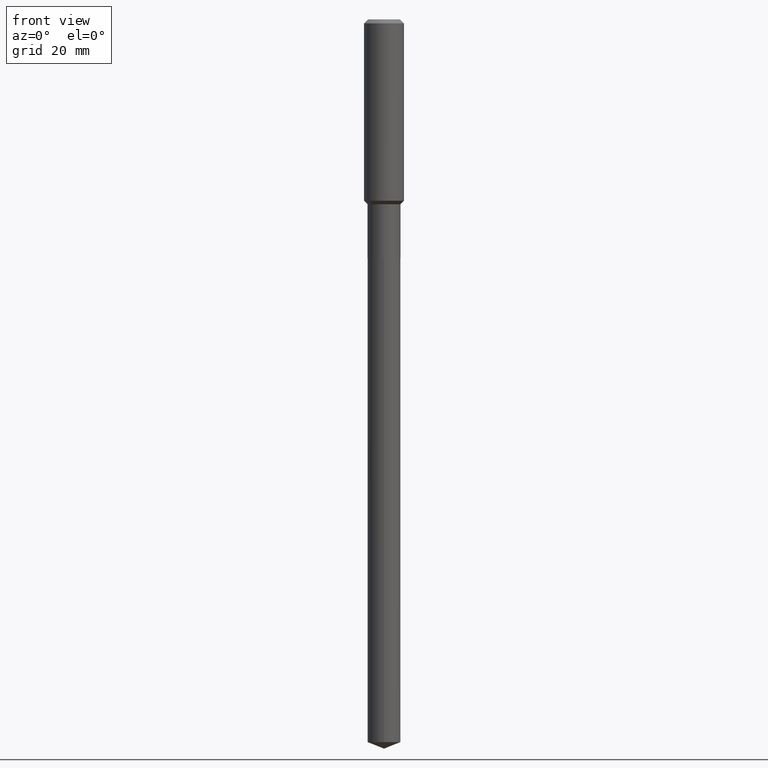
[diagram: clean part render]
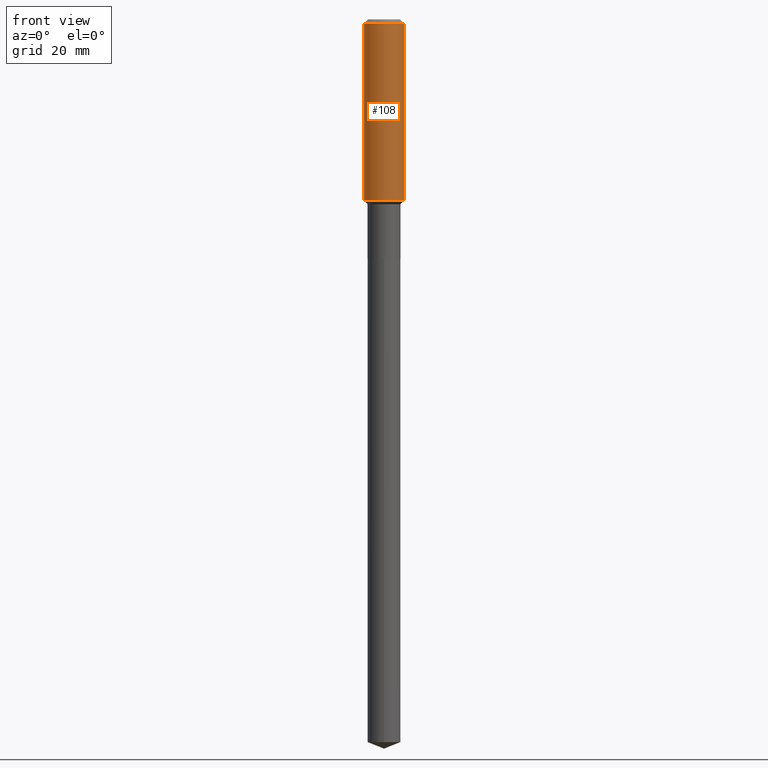
[diagram: same view with one face highlighted and labeled with its STEP entity id]
A machine part, front view. The second image highlights one B-rep face of the part: STEP entity #108.
In plain terms, the highlighted cylindrical surface (edge-blend (fillet) strip) has radius 4.0005 mm, axis along (-0, 0, 1).
Its self-contained STEP definition (entity closure, byte-faithful):
#4 = VECTOR ( 'NONE', #15, 39.37007874015748143 ) ;
#15 = DIRECTION ( 'NONE',  ( -2.445468806185136877E-29, 3.491481338843145188E-15, 1.000000000000000000 ) ) ;
#22 = DIRECTION ( 'NONE',  ( 1.000000000000000000, -6.982962677686267499E-15, 4.876176775795936353E-29 ) ) ;
#25 = CARTESIAN_POINT ( 'NONE',  ( 0.1575000000000001676, -6.090540047477979098E-15, -1.429399999999999782 ) ) ;
#45 = DIRECTION ( 'NONE',  ( 1.000000000000000000, -6.982962677686267499E-15, 0.000000000000000000 ) ) ;
#46 = DIRECTION ( 'NONE',  ( 1.000000000000000000, -6.982962677686265922E-15, 0.000000000000000000 ) ) ;
#53 = EDGE_CURVE ( 'NONE', #447, #105, #425, .T. ) ;
#55 = CARTESIAN_POINT ( 'NONE',  ( -0.1575000000000000844, 1.119104808822158392E-15, -7.747322767151481189E-30 ) ) ;
#85 = CARTESIAN_POINT ( 'NONE',  ( -0.1575000000000000011, -1.431247735135817146E-15, -0.03150000000000019451 ) ) ;
#87 = FACE_OUTER_BOUND ( 'NONE', #445, .T. ) ;
#90 = CYLINDRICAL_SURFACE ( 'NONE', #200, 0.1575000000000000844 ) ;
#91 = VECTOR ( 'NONE', #268, 39.37007874015748143 ) ;
#105 = VERTEX_POINT ( 'NONE', #207 ) ;
#108 = ADVANCED_FACE ( 'NONE', ( #87 ), #90, .T. ) ;
#135 = EDGE_CURVE ( 'NONE', #488, #447, #137, .T. ) ;
#137 = CIRCLE ( 'NONE', #145, 0.1575000000000001676 ) ;
#145 = AXIS2_PLACEMENT_3D ( 'NONE', #169, #316, #45 ) ;
#148 = ORIENTED_EDGE ( 'NONE', *, *, #53, .T. ) ;
#169 = CARTESIAN_POINT ( 'NONE',  ( 3.495553111561033613E-29, -4.990723425742391618E-15, -1.429399999999999782 ) ) ;
#200 = AXIS2_PLACEMENT_3D ( 'NONE', #359, #427, #22 ) ;
#207 = CARTESIAN_POINT ( 'NONE',  ( 0.1575000000000000011, -1.209798283909146741E-15, -0.03150000000000019451 ) ) ;
#244 = CARTESIAN_POINT ( 'NONE',  ( -0.1575000000000001676, -3.871618616920231648E-15, -1.429399999999999782 ) ) ;
#259 = ORIENTED_EDGE ( 'NONE', *, *, #135, .T. ) ;
#268 = DIRECTION ( 'NONE',  ( -2.445468806185136877E-29, 3.491481338843145188E-15, 1.000000000000000000 ) ) ;
#273 = EDGE_CURVE ( 'NONE', #321, #105, #390, .T. ) ;
#289 = EDGE_CURVE ( 'NONE', #488, #321, #354, .T. ) ;
#292 = DIRECTION ( 'NONE',  ( -2.445468806185136597E-29, 3.491481338843145583E-15, 1.000000000000000000 ) ) ;
#301 = ORIENTED_EDGE ( 'NONE', *, *, #273, .F. ) ;
#316 = DIRECTION ( 'NONE',  ( -2.445468806185136597E-29, 3.491481338843145583E-15, 1.000000000000000000 ) ) ;
#321 = VERTEX_POINT ( 'NONE', #85 ) ;
#329 = CARTESIAN_POINT ( 'NONE',  ( 7.703226739483228723E-31, -1.099816621735597661E-16, -0.03150000000000019451 ) ) ;
#354 = LINE ( 'NONE', #55, #4 ) ;
#359 = CARTESIAN_POINT ( 'NONE',  ( 0.000000000000000000, 0.000000000000000000, 0.000000000000000000 ) ) ;
#369 = ORIENTED_EDGE ( 'NONE', *, *, #289, .F. ) ;
#390 = CIRCLE ( 'NONE', #487, 0.1575000000000000011 ) ;
#404 = CARTESIAN_POINT ( 'NONE',  ( 0.1575000000000000844, -1.099816621735587677E-15, 7.679978421878603638E-30 ) ) ;
#425 = LINE ( 'NONE', #404, #91 ) ;
#427 = DIRECTION ( 'NONE',  ( -2.445468806185136597E-29, 3.491481338843145583E-15, 1.000000000000000000 ) ) ;
#445 = EDGE_LOOP ( 'NONE', ( #369, #259, #148, #301 ) ) ;
#447 = VERTEX_POINT ( 'NONE', #25 ) ;
#487 = AXIS2_PLACEMENT_3D ( 'NONE', #329, #292, #46 ) ;
#488 = VERTEX_POINT ( 'NONE', #244 ) ;